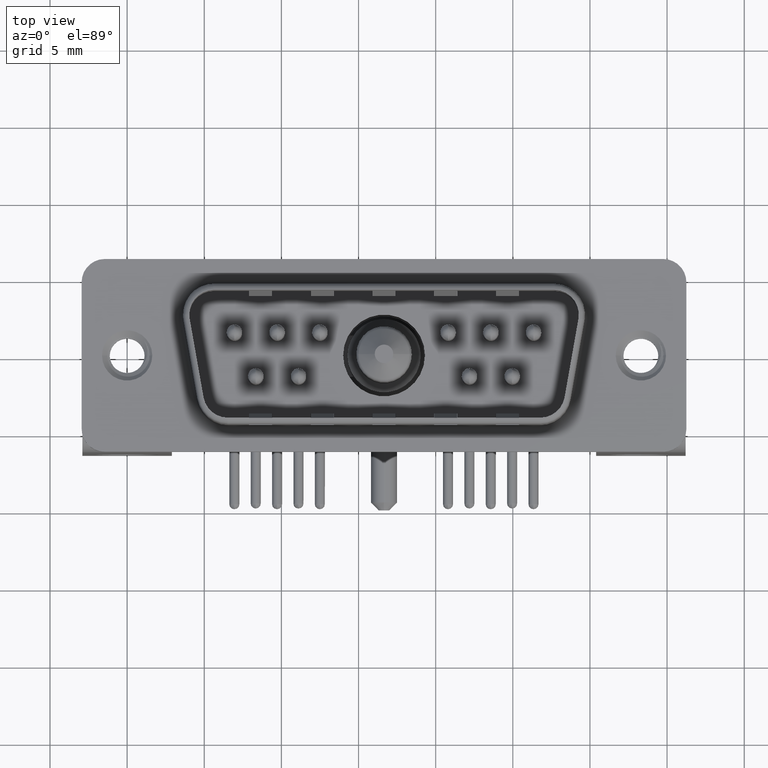
[diagram: clean part render]
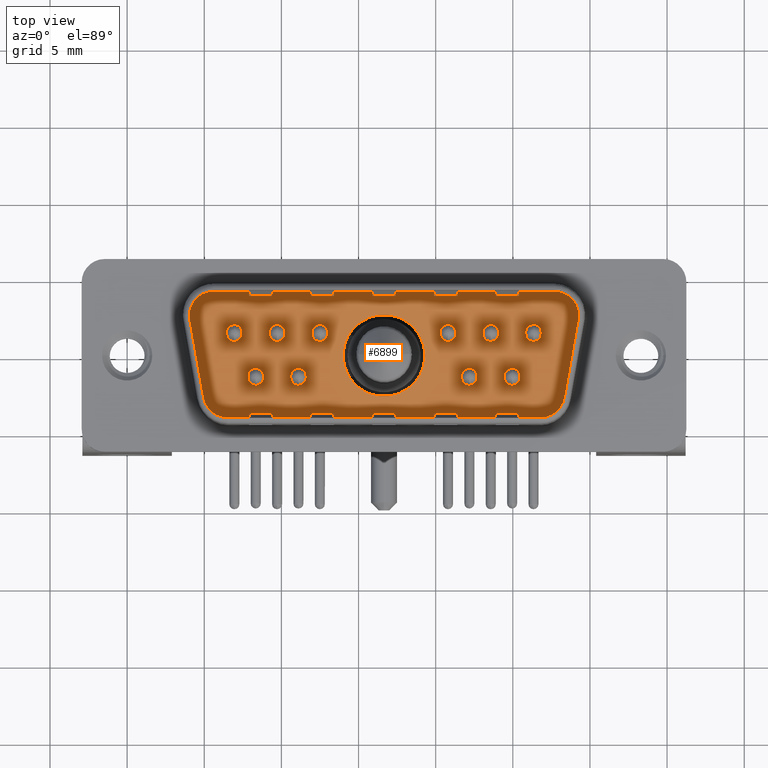
[diagram: same view with one face highlighted and labeled with its STEP entity id]
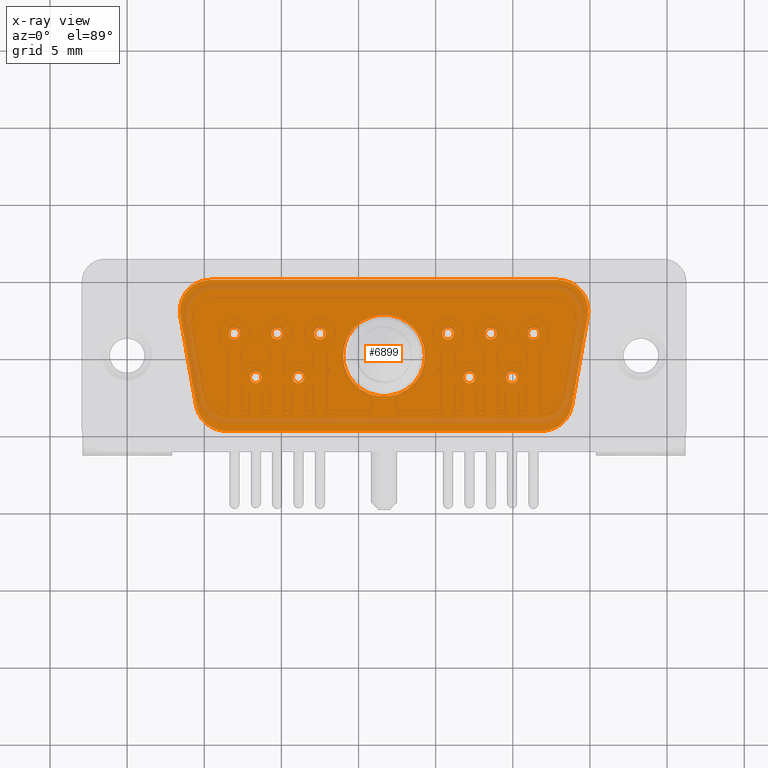
[diagram: x-ray of the same camera — body ghosted, the highlighted face saturated]
A machine part, top view. The second image highlights one B-rep face of the part: STEP entity #6899.
The next image is the same camera in x-ray: the body ghosted, the highlighted face saturated — about 13% of this face is hidden behind the body in this view.
In plain terms, the highlighted planar face has unit normal (0, 0, 1).
Its self-contained STEP definition (entity closure, byte-faithful):
#252 = EDGE_CURVE ( 'NONE', #10209, #14332, #14483, .T. ) ;
#291 = FACE_BOUND ( 'NONE', #1844, .T. ) ;
#395 = FACE_BOUND ( 'NONE', #11526, .T. ) ;
#398 = EDGE_LOOP ( 'NONE', ( #14705, #3724 ) ) ;
#427 = DIRECTION ( 'NONE',  ( 0.0000000000000000000, 0.0000000000000000000, 1.000000000000000000 ) ) ;
#442 = CARTESIAN_POINT ( 'NONE',  ( 8.334999999999995524, -1.424999999999994493, 0.0000000000000000000 ) ) ;
#475 = CARTESIAN_POINT ( 'NONE',  ( 20.79999999999999716, 1.415000000000005143, 0.0000000000000000000 ) ) ;
#635 = DIRECTION ( 'NONE',  ( 0.0000000000000000000, 0.0000000000000000000, 1.000000000000000000 ) ) ;
#769 = DIRECTION ( 'NONE',  ( 1.000000000000000000, 0.0000000000000000000, 0.0000000000000000000 ) ) ;
#782 = CIRCLE ( 'NONE', #13991, 0.3750000000000003331 ) ;
#988 = CARTESIAN_POINT ( 'NONE',  ( 11.10499999999999510, -1.424999999999994493, 0.0000000000000000000 ) ) ;
#1026 = EDGE_LOOP ( 'NONE', ( #10205, #6509, #8824, #13658, #13575, #17362, #2226, #5268, #14451 ) ) ;
#1327 = ORIENTED_EDGE ( 'NONE', *, *, #13217, .F. ) ;
#1344 = CARTESIAN_POINT ( 'NONE',  ( 23.19499999999999318, 1.415000000000005143, 0.0000000000000000000 ) ) ;
#1380 = CARTESIAN_POINT ( 'NONE',  ( 26.86633194692172211, -2.899999999999999911, 0.0000000000000000000 ) ) ;
#1404 = DIRECTION ( 'NONE',  ( 1.000000000000000000, 0.0000000000000000000, 0.0000000000000000000 ) ) ;
#1413 = CIRCLE ( 'NONE', #18759, 1.999999999999999112 ) ;
#1454 = ORIENTED_EDGE ( 'NONE', *, *, #10297, .F. ) ;
#1534 = CIRCLE ( 'NONE', #8354, 0.3750000000000003331 ) ;
#1539 = VERTEX_POINT ( 'NONE', #23092 ) ;
#1702 = CARTESIAN_POINT ( 'NONE',  ( 11.47999999999999510, -1.424999999999994493, 0.0000000000000000000 ) ) ;
#1746 = CIRCLE ( 'NONE', #9346, 2.000000000000001776 ) ;
#1760 = CARTESIAN_POINT ( 'NONE',  ( 29.88902843503082352, 2.900000000000004796, 0.0000000000000000000 ) ) ;
#1771 = AXIS2_PLACEMENT_3D ( 'NONE', #13600, #20772, #4151 ) ;
#1836 = ORIENTED_EDGE ( 'NONE', *, *, #10409, .F. ) ;
#1844 = EDGE_LOOP ( 'NONE', ( #6300, #1836 ) ) ;
#1968 = CARTESIAN_POINT ( 'NONE',  ( 12.48999999999999666, 1.415000000000005143, 0.0000000000000000000 ) ) ;
#2070 = LINE ( 'NONE', #3421, #2908 ) ;
#2075 = CARTESIAN_POINT ( 'NONE',  ( 24.95499999999999474, -1.424999999999994493, 0.0000000000000000000 ) ) ;
#2092 = DIRECTION ( 'NONE',  ( 0.0000000000000000000, 0.0000000000000000000, 1.000000000000000000 ) ) ;
#2098 = ORIENTED_EDGE ( 'NONE', *, *, #5964, .F. ) ;
#2138 = VERTEX_POINT ( 'NONE', #1702 ) ;
#2149 = DIRECTION ( 'NONE',  ( 0.0000000000000000000, 0.0000000000000000000, 1.000000000000000000 ) ) ;
#2226 = ORIENTED_EDGE ( 'NONE', *, *, #7620, .T. ) ;
#2304 = CARTESIAN_POINT ( 'NONE',  ( 7.324999999999997513, 1.415000000000005143, 0.0000000000000000000 ) ) ;
#2308 = CIRCLE ( 'NONE', #21161, 0.3750000000000037748 ) ;
#2738 = CARTESIAN_POINT ( 'NONE',  ( 24.95499999999999474, -1.424999999999994493, 0.0000000000000000000 ) ) ;
#2757 = CARTESIAN_POINT ( 'NONE',  ( 26.33999999999999631, 1.415000000000005143, 0.0000000000000000000 ) ) ;
#2880 = CIRCLE ( 'NONE', #17222, 0.3750000000000037748 ) ;
#2908 = VECTOR ( 'NONE', #5733, 1000.000000000000000 ) ;
#3050 = VERTEX_POINT ( 'NONE', #2304 ) ;
#3073 = VERTEX_POINT ( 'NONE', #17073 ) ;
#3147 = LINE ( 'NONE', #5908, #6738 ) ;
#3298 = EDGE_CURVE ( 'NONE', #21700, #8119, #20512, .T. ) ;
#3315 = CARTESIAN_POINT ( 'NONE',  ( 3.441356058944757379, 2.552703644666139304, 0.0000000000000000000 ) ) ;
#3344 = CARTESIAN_POINT ( 'NONE',  ( 6.433668053078281268, -4.900000000000001243, 0.0000000000000000000 ) ) ;
#3421 = CARTESIAN_POINT ( 'NONE',  ( 5.410971564969174530, 4.900000000000003020, 0.0000000000000000000 ) ) ;
#3514 = DIRECTION ( 'NONE',  ( 1.000000000000000000, 0.0000000000000000000, 0.0000000000000000000 ) ) ;
#3571 = CARTESIAN_POINT ( 'NONE',  ( 6.949999999999995737, 1.415000000000005143, 0.0000000000000000000 ) ) ;
#3724 = ORIENTED_EDGE ( 'NONE', *, *, #17471, .F. ) ;
#3735 = CARTESIAN_POINT ( 'NONE',  ( 27.88902843503081996, 2.900000000000004796, 0.0000000000000000000 ) ) ;
#3741 = EDGE_CURVE ( 'NONE', #2138, #9671, #11123, .T. ) ;
#3930 = FACE_BOUND ( 'NONE', #18767, .T. ) ;
#4061 = FACE_BOUND ( 'NONE', #14605, .T. ) ;
#4071 = CARTESIAN_POINT ( 'NONE',  ( 22.18499999999999517, -1.424999999999994493, 0.0000000000000000000 ) ) ;
#4151 = DIRECTION ( 'NONE',  ( 1.000000000000000000, 0.0000000000000000000, 0.0000000000000000000 ) ) ;
#4246 = AXIS2_PLACEMENT_3D ( 'NONE', #9791, #6677, #18741 ) ;
#4263 = VERTEX_POINT ( 'NONE', #19227 ) ;
#4397 = VERTEX_POINT ( 'NONE', #1760 ) ;
#4592 = CARTESIAN_POINT ( 'NONE',  ( 28.83594745294613659, -3.247296355333862738, 0.0000000000000000000 ) ) ;
#4645 = EDGE_LOOP ( 'NONE', ( #11826, #20069 ) ) ;
#4721 = EDGE_LOOP ( 'NONE', ( #18695, #18840 ) ) ;
#4990 = EDGE_CURVE ( 'NONE', #13754, #4263, #2880, .T. ) ;
#5228 = EDGE_CURVE ( 'NONE', #9742, #9093, #19453, .T. ) ;
#5268 = ORIENTED_EDGE ( 'NONE', *, *, #15111, .T. ) ;
#5413 = VERTEX_POINT ( 'NONE', #21032 ) ;
#5479 = EDGE_CURVE ( 'NONE', #13818, #14152, #5914, .T. ) ;
#5704 = FACE_OUTER_BOUND ( 'NONE', #1026, .T. ) ;
#5733 = DIRECTION ( 'NONE',  ( -1.000000000000000000, -1.157611277970787807E-16, -0.0000000000000000000 ) ) ;
#5908 = CARTESIAN_POINT ( 'NONE',  ( 6.433668053078281268, -4.900000000000001243, 0.0000000000000000000 ) ) ;
#5914 = LINE ( 'NONE', #12881, #16795 ) ;
#5964 = EDGE_CURVE ( 'NONE', #5413, #1539, #22142, .T. ) ;
#5989 = AXIS2_PLACEMENT_3D ( 'NONE', #3735, #10723, #22975 ) ;
#6062 = CARTESIAN_POINT ( 'NONE',  ( 9.344999999999995310, 1.415000000000005143, 0.0000000000000000000 ) ) ;
#6102 = VERTEX_POINT ( 'NONE', #17315 ) ;
#6300 = ORIENTED_EDGE ( 'NONE', *, *, #5228, .F. ) ;
#6302 = CARTESIAN_POINT ( 'NONE',  ( 6.574999999999994849, 1.415000000000005143, 0.0000000000000000000 ) ) ;
#6431 = DIRECTION ( 'NONE',  ( 0.0000000000000000000, 0.0000000000000000000, 1.000000000000000000 ) ) ;
#6452 = EDGE_CURVE ( 'NONE', #14152, #4397, #1746, .T. ) ;
#6509 = ORIENTED_EDGE ( 'NONE', *, *, #5479, .T. ) ;
#6534 = DIRECTION ( 'NONE',  ( 1.000000000000000000, 0.0000000000000000000, 0.0000000000000000000 ) ) ;
#6677 = DIRECTION ( 'NONE',  ( 0.0000000000000000000, 0.0000000000000000000, 1.000000000000000000 ) ) ;
#6738 = VECTOR ( 'NONE', #13128, 1000.000000000000000 ) ;
#6899 = ADVANCED_FACE ( 'NONE', ( #3930, #8970, #4061, #22119, #13169, #291, #22236, #395, #7961, #7605, #9624, #5704 ), #15167, .T. ) ;
#6969 = CARTESIAN_POINT ( 'NONE',  ( 24.57999999999999119, -1.424999999999994493, 0.0000000000000000000 ) ) ;
#7037 = CARTESIAN_POINT ( 'NONE',  ( 20.79999999999999716, 1.415000000000005143, 0.0000000000000000000 ) ) ;
#7074 = EDGE_CURVE ( 'NONE', #11373, #11822, #9308, .T. ) ;
#7106 = DIRECTION ( 'NONE',  ( 0.1736481776669316079, -0.9848077530122079093, 0.0000000000000000000 ) ) ;
#7347 = DIRECTION ( 'NONE',  ( 1.000000000000000000, 0.0000000000000000000, 0.0000000000000000000 ) ) ;
#7504 = AXIS2_PLACEMENT_3D ( 'NONE', #3571, #16214, #14215 ) ;
#7605 = FACE_BOUND ( 'NONE', #4721, .T. ) ;
#7620 = EDGE_CURVE ( 'NONE', #8599, #13085, #10639, .T. ) ;
#7754 = DIRECTION ( 'NONE',  ( 1.000000000000000000, 0.0000000000000000000, 0.0000000000000000000 ) ) ;
#7834 = AXIS2_PLACEMENT_3D ( 'NONE', #19170, #22602, #17182 ) ;
#7924 = DIRECTION ( 'NONE',  ( 0.0000000000000000000, 0.0000000000000000000, 1.000000000000000000 ) ) ;
#7961 = FACE_BOUND ( 'NONE', #11994, .T. ) ;
#8036 = AXIS2_PLACEMENT_3D ( 'NONE', #4071, #11293, #13177 ) ;
#8119 = VERTEX_POINT ( 'NONE', #15819 ) ;
#8182 = CARTESIAN_POINT ( 'NONE',  ( 21.80999999999999517, -1.424999999999994493, 0.0000000000000000000 ) ) ;
#8218 = CIRCLE ( 'NONE', #19848, 0.3750000000000003331 ) ;
#8354 = AXIS2_PLACEMENT_3D ( 'NONE', #14857, #18389, #12850 ) ;
#8599 = VERTEX_POINT ( 'NONE', #20958 ) ;
#8719 = CARTESIAN_POINT ( 'NONE',  ( 12.48999999999999666, 1.415000000000005143, 0.0000000000000000000 ) ) ;
#8824 = ORIENTED_EDGE ( 'NONE', *, *, #6452, .T. ) ;
#8847 = AXIS2_PLACEMENT_3D ( 'NONE', #21362, #17822, #13943 ) ;
#8935 = ORIENTED_EDGE ( 'NONE', *, *, #3741, .F. ) ;
#8970 = FACE_BOUND ( 'NONE', #18104, .T. ) ;
#9093 = VERTEX_POINT ( 'NONE', #1344 ) ;
#9125 = EDGE_CURVE ( 'NONE', #11822, #11373, #2308, .T. ) ;
#9308 = CIRCLE ( 'NONE', #23248, 0.3750000000000037748 ) ;
#9346 = AXIS2_PLACEMENT_3D ( 'NONE', #12972, #20022, #9550 ) ;
#9414 = CARTESIAN_POINT ( 'NONE',  ( 5.410971564969174530, 2.900000000000002576, 0.0000000000000000000 ) ) ;
#9425 = ORIENTED_EDGE ( 'NONE', *, *, #21706, .F. ) ;
#9508 = CIRCLE ( 'NONE', #17809, 2.000000000000000888 ) ;
#9509 = EDGE_CURVE ( 'NONE', #14332, #10209, #15924, .T. ) ;
#9514 = EDGE_LOOP ( 'NONE', ( #18825, #17754 ) ) ;
#9546 = DIRECTION ( 'NONE',  ( 1.000000000000000000, 0.0000000000000000000, 0.0000000000000000000 ) ) ;
#9550 = DIRECTION ( 'NONE',  ( -1.000000000000000000, 0.0000000000000000000, 0.0000000000000000000 ) ) ;
#9624 = FACE_BOUND ( 'NONE', #398, .T. ) ;
#9671 = VERTEX_POINT ( 'NONE', #23144 ) ;
#9677 = DIRECTION ( 'NONE',  ( 0.0000000000000000000, 0.0000000000000000000, 1.000000000000000000 ) ) ;
#9742 = VERTEX_POINT ( 'NONE', #20391 ) ;
#9780 = CIRCLE ( 'NONE', #7504, 0.3750000000000012212 ) ;
#9782 = DIRECTION ( 'NONE',  ( 1.000000000000000000, 0.0000000000000000000, 0.0000000000000000000 ) ) ;
#9791 = CARTESIAN_POINT ( 'NONE',  ( 23.56999999999999318, 1.415000000000005143, 0.0000000000000000000 ) ) ;
#9960 = DIRECTION ( 'NONE',  ( 0.0000000000000000000, 0.0000000000000000000, 1.000000000000000000 ) ) ;
#10192 = EDGE_CURVE ( 'NONE', #1539, #5413, #11431, .T. ) ;
#10205 = ORIENTED_EDGE ( 'NONE', *, *, #15704, .T. ) ;
#10204 = DIRECTION ( 'NONE',  ( 0.0000000000000000000, 0.0000000000000000000, 1.000000000000000000 ) ) ;
#10209 = VERTEX_POINT ( 'NONE', #6969 ) ;
#10297 = EDGE_CURVE ( 'NONE', #16207, #15710, #17824, .T. ) ;
#10409 = EDGE_CURVE ( 'NONE', #9093, #9742, #21578, .T. ) ;
#10606 = DIRECTION ( 'NONE',  ( 1.000000000000000000, 0.0000000000000000000, 0.0000000000000000000 ) ) ;
#10639 = LINE ( 'NONE', #3315, #13478 ) ;
#10723 = DIRECTION ( 'NONE',  ( 0.0000000000000000000, 0.0000000000000000000, 1.000000000000000000 ) ) ;
#10898 = ORIENTED_EDGE ( 'NONE', *, *, #4990, .F. ) ;
#10912 = AXIS2_PLACEMENT_3D ( 'NONE', #1380, #7924, #18770 ) ;
#11009 = AXIS2_PLACEMENT_3D ( 'NONE', #2738, #9960, #17148 ) ;
#11055 = AXIS2_PLACEMENT_3D ( 'NONE', #21469, #12164, #1404 ) ;
#11083 = CARTESIAN_POINT ( 'NONE',  ( 29.85864394105523800, 2.552703644666142857, 0.0000000000000000000 ) ) ;
#11123 = CIRCLE ( 'NONE', #20531, 0.3750000000000003331 ) ;
#11205 = ORIENTED_EDGE ( 'NONE', *, *, #7074, .F. ) ;
#11212 = DIRECTION ( 'NONE',  ( 1.000000000000000000, 0.0000000000000000000, 0.0000000000000000000 ) ) ;
#11246 = DIRECTION ( 'NONE',  ( 0.1736481776669309696, 0.9848077530122079093, -0.0000000000000000000 ) ) ;
#11293 = DIRECTION ( 'NONE',  ( 0.0000000000000000000, 0.0000000000000000000, 1.000000000000000000 ) ) ;
#11373 = VERTEX_POINT ( 'NONE', #17713 ) ;
#11381 = VERTEX_POINT ( 'NONE', #14172 ) ;
#11383 = CIRCLE ( 'NONE', #23041, 0.3750000000000003331 ) ;
#11431 = CIRCLE ( 'NONE', #11055, 2.649999999999999467 ) ;
#11518 = EDGE_CURVE ( 'NONE', #3073, #17034, #1534, .T. ) ;
#11523 = EDGE_CURVE ( 'NONE', #8119, #21700, #782, .T. ) ;
#11526 = EDGE_LOOP ( 'NONE', ( #1454, #19078 ) ) ;
#11822 = VERTEX_POINT ( 'NONE', #17335 ) ;
#11826 = ORIENTED_EDGE ( 'NONE', *, *, #9509, .F. ) ;
#11849 = DIRECTION ( 'NONE',  ( 1.000000000000000000, 0.0000000000000000000, 0.0000000000000000000 ) ) ;
#11872 = DIRECTION ( 'NONE',  ( 1.000000000000000000, 0.0000000000000000000, 0.0000000000000000000 ) ) ;
#11994 = EDGE_LOOP ( 'NONE', ( #9425, #10898 ) ) ;
#12026 = EDGE_CURVE ( 'NONE', #17613, #8599, #9508, .T. ) ;
#12164 = DIRECTION ( 'NONE',  ( 0.0000000000000000000, 0.0000000000000000000, 1.000000000000000000 ) ) ;
#12335 = AXIS2_PLACEMENT_3D ( 'NONE', #13614, #10204, #11849 ) ;
#12850 = DIRECTION ( 'NONE',  ( 1.000000000000000000, 0.0000000000000000000, 0.0000000000000000000 ) ) ;
#12881 = CARTESIAN_POINT ( 'NONE',  ( 29.85864394105523800, 2.552703644666142413, 0.0000000000000000000 ) ) ;
#12886 = CARTESIAN_POINT ( 'NONE',  ( 7.959999999999994635, -1.424999999999994493, 0.0000000000000000000 ) ) ;
#12949 = CARTESIAN_POINT ( 'NONE',  ( 26.86633194692171855, -4.899999999999998579, 0.0000000000000000000 ) ) ;
#12972 = CARTESIAN_POINT ( 'NONE',  ( 27.88902843503081996, 2.900000000000004796, 0.0000000000000000000 ) ) ;
#13085 = VERTEX_POINT ( 'NONE', #17552 ) ;
#13128 = DIRECTION ( 'NONE',  ( 1.000000000000000000, 1.273492887410165195E-16, 0.0000000000000000000 ) ) ;
#13169 = FACE_BOUND ( 'NONE', #9514, .T. ) ;
#13177 = DIRECTION ( 'NONE',  ( 1.000000000000000000, 0.0000000000000000000, 0.0000000000000000000 ) ) ;
#13217 = EDGE_CURVE ( 'NONE', #6102, #20248, #13704, .T. ) ;
#13478 = VECTOR ( 'NONE', #7106, 1000.000000000000000 ) ;
#13485 = CARTESIAN_POINT ( 'NONE',  ( 5.410971564969174530, 4.900000000000003020, 0.0000000000000000000 ) ) ;
#13575 = ORIENTED_EDGE ( 'NONE', *, *, #17862, .T. ) ;
#13600 = CARTESIAN_POINT ( 'NONE',  ( 9.719999999999995310, 1.415000000000005143, 0.0000000000000000000 ) ) ;
#13614 = CARTESIAN_POINT ( 'NONE',  ( 23.56999999999999318, 1.415000000000005143, 0.0000000000000000000 ) ) ;
#13658 = ORIENTED_EDGE ( 'NONE', *, *, #15836, .T. ) ;
#13704 = CIRCLE ( 'NONE', #8036, 0.3750000000000003331 ) ;
#13754 = VERTEX_POINT ( 'NONE', #19215 ) ;
#13818 = VERTEX_POINT ( 'NONE', #4592 ) ;
#13943 = DIRECTION ( 'NONE',  ( 1.000000000000000000, 0.0000000000000000000, 0.0000000000000000000 ) ) ;
#13991 = AXIS2_PLACEMENT_3D ( 'NONE', #442, #9677, #11212 ) ;
#14152 = VERTEX_POINT ( 'NONE', #11083 ) ;
#14172 = CARTESIAN_POINT ( 'NONE',  ( 27.88902843503081996, 4.900000000000005684, 0.0000000000000000000 ) ) ;
#14215 = DIRECTION ( 'NONE',  ( 1.000000000000000000, 0.0000000000000000000, 0.0000000000000000000 ) ) ;
#14332 = VERTEX_POINT ( 'NONE', #16977 ) ;
#14428 = ORIENTED_EDGE ( 'NONE', *, *, #10192, .F. ) ;
#14451 = ORIENTED_EDGE ( 'NONE', *, *, #15688, .T. ) ;
#14472 = CIRCLE ( 'NONE', #8847, 0.3750000000000012212 ) ;
#14483 = CIRCLE ( 'NONE', #16757, 0.3750000000000037748 ) ;
#14503 = EDGE_CURVE ( 'NONE', #15710, #16207, #11383, .T. ) ;
#14605 = EDGE_LOOP ( 'NONE', ( #1327, #20800 ) ) ;
#14697 = EDGE_CURVE ( 'NONE', #20248, #6102, #18035, .T. ) ;
#14705 = ORIENTED_EDGE ( 'NONE', *, *, #22071, .F. ) ;
#14802 = CARTESIAN_POINT ( 'NONE',  ( 26.86633194692172211, -2.899999999999999911, 0.0000000000000000000 ) ) ;
#14857 = CARTESIAN_POINT ( 'NONE',  ( 9.719999999999995310, 1.415000000000005143, 0.0000000000000000000 ) ) ;
#15066 = EDGE_LOOP ( 'NONE', ( #16902, #11205 ) ) ;
#15111 = EDGE_CURVE ( 'NONE', #13085, #21657, #1413, .T. ) ;
#15167 = PLANE ( 'NONE',  #17233 ) ;
#15424 = CARTESIAN_POINT ( 'NONE',  ( 26.33999999999999631, 1.415000000000005143, 0.0000000000000000000 ) ) ;
#15688 = EDGE_CURVE ( 'NONE', #21657, #22551, #3147, .T. ) ;
#15704 = EDGE_CURVE ( 'NONE', #22551, #13818, #22195, .T. ) ;
#15710 = VERTEX_POINT ( 'NONE', #20290 ) ;
#15819 = CARTESIAN_POINT ( 'NONE',  ( 8.709999999999995524, -1.424999999999994493, 0.0000000000000000000 ) ) ;
#15836 = EDGE_CURVE ( 'NONE', #4397, #11381, #17678, .T. ) ;
#15924 = CIRCLE ( 'NONE', #11009, 0.3750000000000037748 ) ;
#15996 = CIRCLE ( 'NONE', #20466, 0.3750000000000037748 ) ;
#16134 = CIRCLE ( 'NONE', #1771, 0.3750000000000003331 ) ;
#16207 = VERTEX_POINT ( 'NONE', #21420 ) ;
#16214 = DIRECTION ( 'NONE',  ( 0.0000000000000000000, 0.0000000000000000000, 1.000000000000000000 ) ) ;
#16388 = AXIS2_PLACEMENT_3D ( 'NONE', #20945, #17420, #20823 ) ;
#16461 = VERTEX_POINT ( 'NONE', #6302 ) ;
#16757 = AXIS2_PLACEMENT_3D ( 'NONE', #2075, #21340, #3514 ) ;
#16795 = VECTOR ( 'NONE', #11246, 1000.000000000000227 ) ;
#16902 = ORIENTED_EDGE ( 'NONE', *, *, #9125, .F. ) ;
#16977 = CARTESIAN_POINT ( 'NONE',  ( 25.32999999999999829, -1.424999999999994493, 0.0000000000000000000 ) ) ;
#17034 = VERTEX_POINT ( 'NONE', #6062 ) ;
#17045 = DIRECTION ( 'NONE',  ( 1.000000000000000000, 0.0000000000000000000, 0.0000000000000000000 ) ) ;
#17073 = CARTESIAN_POINT ( 'NONE',  ( 10.09499999999999709, 1.415000000000005143, 0.0000000000000000000 ) ) ;
#17148 = DIRECTION ( 'NONE',  ( 1.000000000000000000, 0.0000000000000000000, 0.0000000000000000000 ) ) ;
#17182 = DIRECTION ( 'NONE',  ( 1.000000000000000000, 0.0000000000000000000, 0.0000000000000000000 ) ) ;
#17222 = AXIS2_PLACEMENT_3D ( 'NONE', #7037, #19393, #17530 ) ;
#17233 = AXIS2_PLACEMENT_3D ( 'NONE', #14802, #635, #18342 ) ;
#17315 = CARTESIAN_POINT ( 'NONE',  ( 22.55999999999999517, -1.424999999999994493, 0.0000000000000000000 ) ) ;
#17335 = CARTESIAN_POINT ( 'NONE',  ( 26.71499999999999986, 1.415000000000005143, 0.0000000000000000000 ) ) ;
#17362 = ORIENTED_EDGE ( 'NONE', *, *, #12026, .T. ) ;
#17420 = DIRECTION ( 'NONE',  ( 0.0000000000000000000, 0.0000000000000000000, 1.000000000000000000 ) ) ;
#17471 = EDGE_CURVE ( 'NONE', #16461, #3050, #9780, .T. ) ;
#17530 = DIRECTION ( 'NONE',  ( 1.000000000000000000, 0.0000000000000000000, 0.0000000000000000000 ) ) ;
#17552 = CARTESIAN_POINT ( 'NONE',  ( 4.464052547053863229, -3.247296355333866735, 0.0000000000000000000 ) ) ;
#17613 = VERTEX_POINT ( 'NONE', #13485 ) ;
#17678 = CIRCLE ( 'NONE', #5989, 2.000000000000001776 ) ;
#17713 = CARTESIAN_POINT ( 'NONE',  ( 25.96499999999999275, 1.415000000000005143, 0.0000000000000000000 ) ) ;
#17754 = ORIENTED_EDGE ( 'NONE', *, *, #3298, .F. ) ;
#17809 = AXIS2_PLACEMENT_3D ( 'NONE', #9414, #21669, #7754 ) ;
#17822 = DIRECTION ( 'NONE',  ( 0.0000000000000000000, 0.0000000000000000000, 1.000000000000000000 ) ) ;
#17824 = CIRCLE ( 'NONE', #19692, 0.3750000000000003331 ) ;
#17862 = EDGE_CURVE ( 'NONE', #11381, #17613, #2070, .T. ) ;
#18035 = CIRCLE ( 'NONE', #7834, 0.3750000000000003331 ) ;
#18104 = EDGE_LOOP ( 'NONE', ( #8935, #21967 ) ) ;
#18327 = CARTESIAN_POINT ( 'NONE',  ( 6.433668053078277715, -2.900000000000002576, 0.0000000000000000000 ) ) ;
#18342 = DIRECTION ( 'NONE',  ( 1.000000000000000000, 0.0000000000000000000, -0.0000000000000000000 ) ) ;
#18365 = AXIS2_PLACEMENT_3D ( 'NONE', #22255, #18477, #769 ) ;
#18389 = DIRECTION ( 'NONE',  ( 0.0000000000000000000, 0.0000000000000000000, 1.000000000000000000 ) ) ;
#18477 = DIRECTION ( 'NONE',  ( 0.0000000000000000000, 0.0000000000000000000, 1.000000000000000000 ) ) ;
#18484 = CARTESIAN_POINT ( 'NONE',  ( 11.10499999999999510, -1.424999999999994493, 0.0000000000000000000 ) ) ;
#18695 = ORIENTED_EDGE ( 'NONE', *, *, #11518, .F. ) ;
#18741 = DIRECTION ( 'NONE',  ( 1.000000000000000000, 0.0000000000000000000, 0.0000000000000000000 ) ) ;
#18759 = AXIS2_PLACEMENT_3D ( 'NONE', #18327, #2149, #20313 ) ;
#18767 = EDGE_LOOP ( 'NONE', ( #2098, #14428 ) ) ;
#18770 = DIRECTION ( 'NONE',  ( 1.000000000000000000, 0.0000000000000000000, 0.0000000000000000000 ) ) ;
#18825 = ORIENTED_EDGE ( 'NONE', *, *, #11523, .F. ) ;
#18840 = ORIENTED_EDGE ( 'NONE', *, *, #20138, .F. ) ;
#19078 = ORIENTED_EDGE ( 'NONE', *, *, #14503, .F. ) ;
#19157 = DIRECTION ( 'NONE',  ( 0.0000000000000000000, 0.0000000000000000000, 1.000000000000000000 ) ) ;
#19170 = CARTESIAN_POINT ( 'NONE',  ( 22.18499999999999517, -1.424999999999994493, 0.0000000000000000000 ) ) ;
#19215 = CARTESIAN_POINT ( 'NONE',  ( 20.42499999999999005, 1.415000000000005143, 0.0000000000000000000 ) ) ;
#19227 = CARTESIAN_POINT ( 'NONE',  ( 21.17500000000000071, 1.415000000000005143, 0.0000000000000000000 ) ) ;
#19393 = DIRECTION ( 'NONE',  ( 0.0000000000000000000, 0.0000000000000000000, 1.000000000000000000 ) ) ;
#19453 = CIRCLE ( 'NONE', #12335, 0.3750000000000003331 ) ;
#19682 = EDGE_CURVE ( 'NONE', #9671, #2138, #8218, .T. ) ;
#19692 = AXIS2_PLACEMENT_3D ( 'NONE', #1968, #2092, #9546 ) ;
#19848 = AXIS2_PLACEMENT_3D ( 'NONE', #18484, #427, #9782 ) ;
#20022 = DIRECTION ( 'NONE',  ( 0.0000000000000000000, 0.0000000000000000000, 1.000000000000000000 ) ) ;
#20069 = ORIENTED_EDGE ( 'NONE', *, *, #252, .F. ) ;
#20138 = EDGE_CURVE ( 'NONE', #17034, #3073, #16134, .T. ) ;
#20248 = VERTEX_POINT ( 'NONE', #8182 ) ;
#20290 = CARTESIAN_POINT ( 'NONE',  ( 12.11499999999999488, 1.415000000000005143, 0.0000000000000000000 ) ) ;
#20313 = DIRECTION ( 'NONE',  ( -1.000000000000000000, 0.0000000000000000000, 0.0000000000000000000 ) ) ;
#20391 = CARTESIAN_POINT ( 'NONE',  ( 23.94499999999999318, 1.415000000000005143, 0.0000000000000000000 ) ) ;
#20466 = AXIS2_PLACEMENT_3D ( 'NONE', #475, #22083, #7347 ) ;
#20512 = CIRCLE ( 'NONE', #16388, 0.3750000000000003331 ) ;
#20531 = AXIS2_PLACEMENT_3D ( 'NONE', #988, #22807, #17045 ) ;
#20772 = DIRECTION ( 'NONE',  ( 0.0000000000000000000, 0.0000000000000000000, 1.000000000000000000 ) ) ;
#20800 = ORIENTED_EDGE ( 'NONE', *, *, #14697, .F. ) ;
#20823 = DIRECTION ( 'NONE',  ( 1.000000000000000000, 0.0000000000000000000, 0.0000000000000000000 ) ) ;
#20945 = CARTESIAN_POINT ( 'NONE',  ( 8.334999999999995524, -1.424999999999994493, 0.0000000000000000000 ) ) ;
#20958 = CARTESIAN_POINT ( 'NONE',  ( 3.441356058944757379, 2.552703644666139304, 0.0000000000000000000 ) ) ;
#21032 = CARTESIAN_POINT ( 'NONE',  ( 19.29999999999999716, 3.469446951953614189E-15, 0.0000000000000000000 ) ) ;
#21161 = AXIS2_PLACEMENT_3D ( 'NONE', #15424, #6431, #11872 ) ;
#21340 = DIRECTION ( 'NONE',  ( 0.0000000000000000000, 0.0000000000000000000, 1.000000000000000000 ) ) ;
#21362 = CARTESIAN_POINT ( 'NONE',  ( 6.949999999999995737, 1.415000000000005143, 0.0000000000000000000 ) ) ;
#21420 = CARTESIAN_POINT ( 'NONE',  ( 12.86499999999999666, 1.415000000000005143, 0.0000000000000000000 ) ) ;
#21469 = CARTESIAN_POINT ( 'NONE',  ( 16.64999999999999858, 3.469446951953614189E-15, 0.0000000000000000000 ) ) ;
#21578 = CIRCLE ( 'NONE', #4246, 0.3750000000000003331 ) ;
#21657 = VERTEX_POINT ( 'NONE', #3344 ) ;
#21669 = DIRECTION ( 'NONE',  ( 0.0000000000000000000, 0.0000000000000000000, 1.000000000000000000 ) ) ;
#21700 = VERTEX_POINT ( 'NONE', #12886 ) ;
#21706 = EDGE_CURVE ( 'NONE', #4263, #13754, #15996, .T. ) ;
#21967 = ORIENTED_EDGE ( 'NONE', *, *, #19682, .F. ) ;
#22071 = EDGE_CURVE ( 'NONE', #3050, #16461, #14472, .T. ) ;
#22083 = DIRECTION ( 'NONE',  ( 0.0000000000000000000, 0.0000000000000000000, 1.000000000000000000 ) ) ;
#22119 = FACE_BOUND ( 'NONE', #4645, .T. ) ;
#22142 = CIRCLE ( 'NONE', #18365, 2.649999999999999467 ) ;
#22195 = CIRCLE ( 'NONE', #10912, 1.999999999999998224 ) ;
#22236 = FACE_BOUND ( 'NONE', #15066, .T. ) ;
#22255 = CARTESIAN_POINT ( 'NONE',  ( 16.64999999999999858, 3.469446951953614189E-15, 0.0000000000000000000 ) ) ;
#22551 = VERTEX_POINT ( 'NONE', #12949 ) ;
#22602 = DIRECTION ( 'NONE',  ( 0.0000000000000000000, 0.0000000000000000000, 1.000000000000000000 ) ) ;
#22807 = DIRECTION ( 'NONE',  ( 0.0000000000000000000, 0.0000000000000000000, 1.000000000000000000 ) ) ;
#22975 = DIRECTION ( 'NONE',  ( -1.000000000000000000, 0.0000000000000000000, 0.0000000000000000000 ) ) ;
#23041 = AXIS2_PLACEMENT_3D ( 'NONE', #8719, #23085, #10606 ) ;
#23085 = DIRECTION ( 'NONE',  ( 0.0000000000000000000, 0.0000000000000000000, 1.000000000000000000 ) ) ;
#23092 = CARTESIAN_POINT ( 'NONE',  ( 13.99999999999999822, 3.793978353727662489E-15, 0.0000000000000000000 ) ) ;
#23144 = CARTESIAN_POINT ( 'NONE',  ( 10.72999999999999510, -1.424999999999994493, 0.0000000000000000000 ) ) ;
#23248 = AXIS2_PLACEMENT_3D ( 'NONE', #2757, #19157, #6534 ) ;